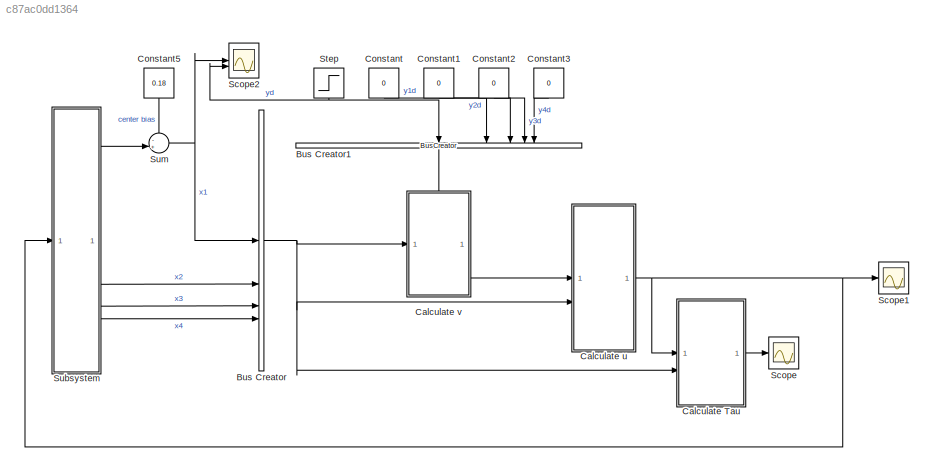
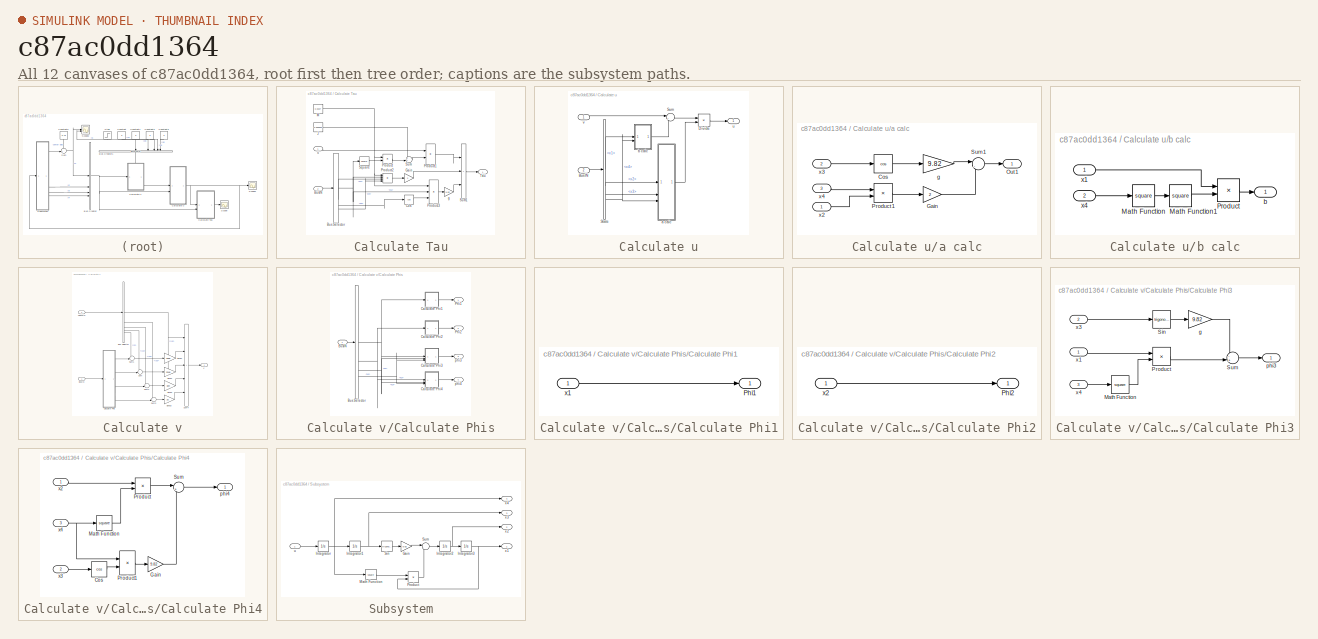
[diagram: thumbnail index - all 12 canvases of the model, root first then tree order]
MODEL slx_c87ac0dd1364
KIND model
CONFIG AbsTol = auto
CONFIG EnableMultiTasking = off
CONFIG FixedStep = auto
CONFIG MaxStep = auto
CONFIG MinStep = auto
CONFIG RelTol = 1e-3
CONFIG SampleTimeConstraint = Unconstrained
CONFIG SolverName = VariableStepAuto
CONFIG StartTime = 0.0
CONFIG StopTime = 50
BLOCK [BusCreator] Bus Creator
  DisplayOption = bar
  InheritFromInputs = on
  Inputs = 4
  NameLocation = right
BLOCK [BusCreator] Bus Creator1
  DisplayOption = bar
  InheritFromInputs = on
  Inputs = 5
  NameLocation = left
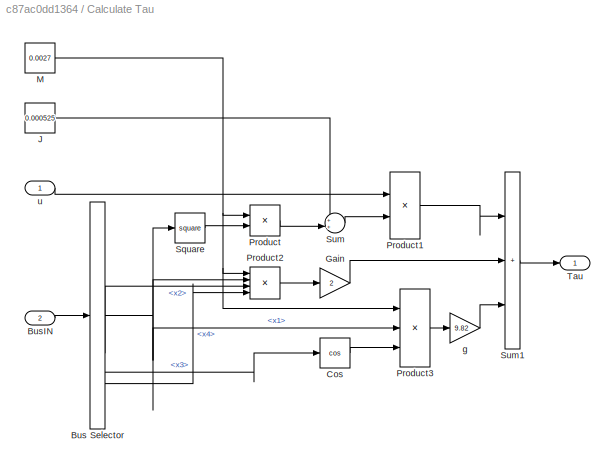
BLOCK [SubSystem] Calculate Tau
BLOCK [BusSelector] Calculate Tau/Bus Selector
  OutputSignals = x1,x2,x3,x4
BLOCK [Inport] Calculate Tau/BusIN
  Port = 2
BLOCK [Trigonometry] Calculate Tau/Cos
  Operator = cos
BLOCK [Gain] Calculate Tau/Gain
  Gain = 2
BLOCK [Constant] Calculate Tau/J
  Value = 0.000525
BLOCK [Constant] Calculate Tau/M
  Value = 0.0027
BLOCK [Product] Calculate Tau/Product
BLOCK [Product] Calculate Tau/Product1
BLOCK [Product] Calculate Tau/Product2
  Inputs = 4
BLOCK [Product] Calculate Tau/Product3
  Inputs = 3
BLOCK [Math] Calculate Tau/Square
  Operator = square
BLOCK [Sum] Calculate Tau/Sum
  Inputs = ++|
BLOCK [Sum] Calculate Tau/Sum1
  IconShape = rectangular
  Inputs = |+++
BLOCK [Outport] Calculate Tau/Tau
BLOCK [Gain] Calculate Tau/g
  Gain = 9.82
BLOCK [Inport] Calculate Tau/u
BLOCK [SubSystem] Calculate u
BLOCK [Inport] Calculate u/BusIN
  Port = 2
BLOCK [Product] Calculate u/Divide
  Inputs = */
BLOCK [BusSelector] Calculate u/State 
  OutputSignals = x1,x2,x3,x4
BLOCK [Sum] Calculate u/Sum
  Inputs = |+-
BLOCK [SubSystem] Calculate u/a calc
BLOCK [Trigonometry] Calculate u/a calc/Cos
  Operator = cos
BLOCK [Gain] Calculate u/a calc/Gain
  Gain = 2
BLOCK [Outport] Calculate u/a calc/Out1
BLOCK [Product] Calculate u/a calc/Product1
BLOCK [Sum] Calculate u/a calc/Sum1
  Inputs = |-+
BLOCK [Gain] Calculate u/a calc/g
  Gain = 9.82
BLOCK [Inport] Calculate u/a calc/x2
BLOCK [Inport] Calculate u/a calc/x3
  Port = 2
BLOCK [Inport] Calculate u/a calc/x4
  Port = 3
BLOCK [SubSystem] Calculate u/b calc
BLOCK [Math] Calculate u/b calc/Math Function
  Operator = square
BLOCK [Math] Calculate u/b calc/Math Function1
  Operator = square
BLOCK [Product] Calculate u/b calc/Product
BLOCK [Outport] Calculate u/b calc/b
BLOCK [Inport] Calculate u/b calc/x1
BLOCK [Inport] Calculate u/b calc/x4
  Port = 2
BLOCK [Outport] Calculate u/u
BLOCK [Inport] Calculate u/v
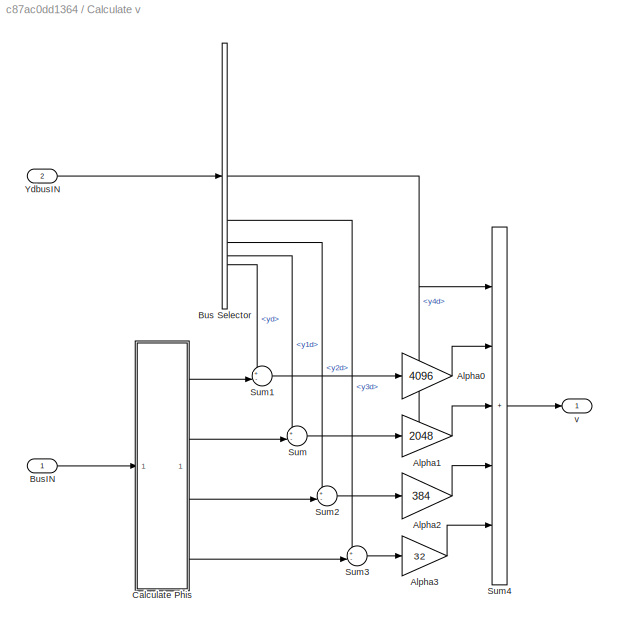
BLOCK [SubSystem] Calculate v
  PortSchema = {"entries":[{"content":{"sides":[{"content":{"connectorIds":["In1"]},"type":"ConnectorPlacement.EquallySpacedRectSide","uuid":"7c28e410-4806-4a94-8ccf-a14e347b0b8c"},{"content":{"connectorIds":["Out1"],"side":"RIGHT"},"type":"ConnectorPlacement.EquallySpacedRectSide","uuid":"f53d7206-bd2e-4f71-94df-5fcac3ff5314"},{"content":{"connectorIds":["In2"],"side":"TOP"},"type":"ConnectorPlacement.EquallySp...<+245ch>
BLOCK [Gain] Calculate v/Alpha0
  Gain = 4096
BLOCK [Gain] Calculate v/Alpha1
  Gain = 2048
BLOCK [Gain] Calculate v/Alpha2
  Gain = 384
BLOCK [Gain] Calculate v/Alpha3
  Gain = 32
BLOCK [BusSelector] Calculate v/Bus Selector
  OutputSignals = y4d,y3d,y2d,y1d,yd
BLOCK [Inport] Calculate v/BusIN
BLOCK [SubSystem] Calculate v/Calculate Phis
BLOCK [BusSelector] Calculate v/Calculate Phis/Bus Selector
  OutputSignals = x1,x2,x3,x4
BLOCK [Inport] Calculate v/Calculate Phis/BusIN
BLOCK [SubSystem] Calculate v/Calculate Phis/Calculate Phi1
BLOCK [Outport] Calculate v/Calculate Phis/Calculate Phi1/Phi1
BLOCK [Inport] Calculate v/Calculate Phis/Calculate Phi1/x1
BLOCK [SubSystem] Calculate v/Calculate Phis/Calculate Phi2
BLOCK [Outport] Calculate v/Calculate Phis/Calculate Phi2/Phi2
BLOCK [Inport] Calculate v/Calculate Phis/Calculate Phi2/x2
BLOCK [SubSystem] Calculate v/Calculate Phis/Calculate Phi3
BLOCK [Math] Calculate v/Calculate Phis/Calculate Phi3/Math Function
  Operator = square
BLOCK [Product] Calculate v/Calculate Phis/Calculate Phi3/Product
BLOCK [Trigonometry] Calculate v/Calculate Phis/Calculate Phi3/Sin
BLOCK [Sum] Calculate v/Calculate Phis/Calculate Phi3/Sum
  Inputs = -+|
BLOCK [Gain] Calculate v/Calculate Phis/Calculate Phi3/g
  Gain = 9.82
BLOCK [Outport] Calculate v/Calculate Phis/Calculate Phi3/phi3
BLOCK [Inport] Calculate v/Calculate Phis/Calculate Phi3/x1
BLOCK [Inport] Calculate v/Calculate Phis/Calculate Phi3/x3
  Port = 2
BLOCK [Inport] Calculate v/Calculate Phis/Calculate Phi3/x4
  Port = 3
BLOCK [SubSystem] Calculate v/Calculate Phis/Calculate Phi4
BLOCK [Trigonometry] Calculate v/Calculate Phis/Calculate Phi4/Cos
  Operator = cos
BLOCK [Gain] Calculate v/Calculate Phis/Calculate Phi4/Gain
  Gain = 9.82
BLOCK [Math] Calculate v/Calculate Phis/Calculate Phi4/Math Function
  Operator = square
BLOCK [Product] Calculate v/Calculate Phis/Calculate Phi4/Product
BLOCK [Product] Calculate v/Calculate Phis/Calculate Phi4/Product1
BLOCK [Sum] Calculate v/Calculate Phis/Calculate Phi4/Sum
  Inputs = |+-
BLOCK [Outport] Calculate v/Calculate Phis/Calculate Phi4/phi4
BLOCK [Inport] Calculate v/Calculate Phis/Calculate Phi4/x2
BLOCK [Inport] Calculate v/Calculate Phis/Calculate Phi4/x3
  Port = 2
BLOCK [Inport] Calculate v/Calculate Phis/Calculate Phi4/x4
  Port = 3
BLOCK [Outport] Calculate v/Calculate Phis/Phi1
BLOCK [Outport] Calculate v/Calculate Phis/Phi2
  Port = 2
BLOCK [Outport] Calculate v/Calculate Phis/phi3
  Port = 3
BLOCK [Outport] Calculate v/Calculate Phis/phi4
  Port = 4
BLOCK [Sum] Calculate v/Sum
  Inputs = +-|
BLOCK [Sum] Calculate v/Sum1
  Inputs = +-|
BLOCK [Sum] Calculate v/Sum2
  Inputs = +-|
BLOCK [Sum] Calculate v/Sum3
  Inputs = +-|
BLOCK [Sum] Calculate v/Sum4
  IconShape = rectangular
  Inputs = |+++++
BLOCK [Inport] Calculate v/YdbusIN
  Port = 2
BLOCK [Outport] Calculate v/v
BLOCK [Constant] Constant
  NameLocation = left
  Value = 0
BLOCK [Constant] Constant1
  NameLocation = left
  Value = 0
BLOCK [Constant] Constant2
  NameLocation = left
  Value = 0
BLOCK [Constant] Constant3
  NameLocation = left
  Value = 0
BLOCK [Constant] Constant5
  NameLocation = left
  Value = 0.18
BLOCK [Scope] Scope
  Floating = off
  NumInputPorts = 1
  ScopeSpecificationString = Simulink.scopes.TimeScopeBlockCfg('CurrentConfiguration', extmgr.ConfigurationSet(extmgr.Configuration('Core','General UI',true),extmgr.Configuration('Core','Source UI',true),extmgr.Configuration('Sources','WiredSimulink',true,'DataLoggingVariableName','ScopeData1'),extmgr.Configuration('Visuals','Time Domain',true),extmgr.Configuration('Tools','Plot Navigation',true),extmgr.Configuration('Tools',...<+40ch>
BLOCK [Scope] Scope1
  Floating = off
  NumInputPorts = 1
  ScopeSpecificationString = Simulink.scopes.TimeScopeBlockCfg('CurrentConfiguration', extmgr.ConfigurationSet(extmgr.Configuration('Core','General UI',true),extmgr.Configuration('Core','Source UI',true),extmgr.Configuration('Sources','WiredSimulink',true,'DataLoggingVariableName','ScopeData2'),extmgr.Configuration('Visuals','Time Domain',true),extmgr.Configuration('Tools','Plot Navigation',true),extmgr.Configuration('Tools',...<+40ch>
BLOCK [Scope] Scope2
  Floating = off
  NumInputPorts = 2
  ScopeSpecificationString = Simulink.scopes.TimeScopeBlockCfg('CurrentConfiguration', extmgr.ConfigurationSet(extmgr.Configuration('Core','General UI',true),extmgr.Configuration('Core','Source UI',true),extmgr.Configuration('Sources','WiredSimulink',true,'DataLoggingVariableName','ScopeData2'),extmgr.Configuration('Visuals','Time Domain',true,'SerializedDisplays',{struct('MinYLimReal','-0.215','MaxYLimReal','0.135','YLabelRe...<+1408ch>
BLOCK [Step] Step
  After = 0.1
  NameLocation = left
  SampleTime = 0
  Time = 10
BLOCK [SubSystem] Subsystem
BLOCK [Gain] Subsystem/Gain
  Gain = 9.82
BLOCK [Integrator] Subsystem/Integrator
BLOCK [Integrator] Subsystem/Integrator1
BLOCK [Integrator] Subsystem/Integrator2
BLOCK [Integrator] Subsystem/Integrator3
BLOCK [Math] Subsystem/Math Function
  Operator = square
BLOCK [Product] Subsystem/Product
BLOCK [Trigonometry] Subsystem/Sin
BLOCK [Sum] Subsystem/Sum
  Inputs = |-+
BLOCK [Inport] Subsystem/u
BLOCK [Outport] Subsystem/x1
BLOCK [Outport] Subsystem/x2
  Port = 2
BLOCK [Outport] Subsystem/x3
  Port = 3
BLOCK [Outport] Subsystem/x4
  Port = 4
BLOCK [Sum] Sum
  Inputs = -+|
LINE Bus Creator1:1 -> Calculate v:2
NET Bus Creator:1 -> Calculate Tau:2, Calculate u:2, Calculate v:1
NET Calculate Tau/Bus Selector:1 -> Calculate Tau/Product2:2, Calculate Tau/Product3:2, Calculate Tau/Square:1
LINE Calculate Tau/Bus Selector:2 -> Calculate Tau/Product2:3
LINE Calculate Tau/Bus Selector:3 -> Calculate Tau/Cos:1
LINE Calculate Tau/Bus Selector:4 -> Calculate Tau/Product2:4
LINE Calculate Tau/BusIN:1 -> Calculate Tau/Bus Selector:1
LINE Calculate Tau/Cos:1 -> Calculate Tau/Product3:3
LINE Calculate Tau/Gain:1 -> Calculate Tau/Sum1:2
LINE Calculate Tau/J:1 -> Calculate Tau/Sum:1
NET Calculate Tau/M:1 -> Calculate Tau/Product2:1, Calculate Tau/Product3:1, Calculate Tau/Product:1
LINE Calculate Tau/Product1:1 -> Calculate Tau/Sum1:1
LINE Calculate Tau/Product2:1 -> Calculate Tau/Gain:1
LINE Calculate Tau/Product3:1 -> Calculate Tau/g:1
LINE Calculate Tau/Product:1 -> Calculate Tau/Sum:2
LINE Calculate Tau/Square:1 -> Calculate Tau/Product:2
LINE Calculate Tau/Sum1:1 -> Calculate Tau/Tau:1
LINE Calculate Tau/Sum:1 -> Calculate Tau/Product1:2
LINE Calculate Tau/g:1 -> Calculate Tau/Sum1:3
LINE Calculate Tau/u:1 -> Calculate Tau/Product1:1
LINE Calculate Tau:1 -> Scope:1
LINE Calculate u/BusIN:1 -> Calculate u/State :1
LINE Calculate u/Divide:1 -> Calculate u/u:1
LINE Calculate u/State :1 -> Calculate u/b calc:1
LINE Calculate u/State :2 -> Calculate u/a calc:1
LINE Calculate u/State :3 -> Calculate u/a calc:2
NET Calculate u/State :4 -> Calculate u/a calc:3, Calculate u/b calc:2
LINE Calculate u/Sum:1 -> Calculate u/Divide:1
LINE Calculate u/a calc/Cos:1 -> Calculate u/a calc/g:1
LINE Calculate u/a calc/Gain:1 -> Calculate u/a calc/Sum1:2
LINE Calculate u/a calc/Product1:1 -> Calculate u/a calc/Gain:1
LINE Calculate u/a calc/Sum1:1 -> Calculate u/a calc/Out1:1
LINE Calculate u/a calc/g:1 -> Calculate u/a calc/Sum1:1
LINE Calculate u/a calc/x2:1 -> Calculate u/a calc/Product1:2
LINE Calculate u/a calc/x3:1 -> Calculate u/a calc/Cos:1
LINE Calculate u/a calc/x4:1 -> Calculate u/a calc/Product1:1
LINE Calculate u/a calc:1 -> Calculate u/Divide:2
LINE Calculate u/b calc/Math Function1:1 -> Calculate u/b calc/Product:2
LINE Calculate u/b calc/Math Function:1 -> Calculate u/b calc/Math Function1:1
LINE Calculate u/b calc/Product:1 -> Calculate u/b calc/b:1
LINE Calculate u/b calc/x1:1 -> Calculate u/b calc/Product:1
LINE Calculate u/b calc/x4:1 -> Calculate u/b calc/Math Function:1
LINE Calculate u/b calc:1 -> Calculate u/Sum:2
LINE Calculate u/v:1 -> Calculate u/Sum:1
NET Calculate u:1 -> Calculate Tau:1, Scope1:1, Subsystem:1
LINE Calculate v/Alpha0:1 -> Calculate v/Sum4:2
LINE Calculate v/Alpha1:1 -> Calculate v/Sum4:3
LINE Calculate v/Alpha2:1 -> Calculate v/Sum4:4
LINE Calculate v/Alpha3:1 -> Calculate v/Sum4:5
LINE Calculate v/Bus Selector:1 -> Calculate v/Sum4:1
LINE Calculate v/Bus Selector:2 -> Calculate v/Sum3:1
LINE Calculate v/Bus Selector:3 -> Calculate v/Sum2:1
LINE Calculate v/Bus Selector:4 -> Calculate v/Sum:1
LINE Calculate v/Bus Selector:5 -> Calculate v/Sum1:1
LINE Calculate v/BusIN:1 -> Calculate v/Calculate Phis:1
NET Calculate v/Calculate Phis/Bus Selector:1 -> Calculate v/Calculate Phis/Calculate Phi1:1, Calculate v/Calculate Phis/Calculate Phi3:1
NET Calculate v/Calculate Phis/Bus Selector:2 -> Calculate v/Calculate Phis/Calculate Phi2:1, Calculate v/Calculate Phis/Calculate Phi4:1
NET Calculate v/Calculate Phis/Bus Selector:3 -> Calculate v/Calculate Phis/Calculate Phi3:2, Calculate v/Calculate Phis/Calculate Phi4:2
NET Calculate v/Calculate Phis/Bus Selector:4 -> Calculate v/Calculate Phis/Calculate Phi3:3, Calculate v/Calculate Phis/Calculate Phi4:3
LINE Calculate v/Calculate Phis/BusIN:1 -> Calculate v/Calculate Phis/Bus Selector:1
LINE Calculate v/Calculate Phis/Calculate Phi1/x1:1 -> Calculate v/Calculate Phis/Calculate Phi1/Phi1:1
LINE Calculate v/Calculate Phis/Calculate Phi1:1 -> Calculate v/Calculate Phis/Phi1:1
LINE Calculate v/Calculate Phis/Calculate Phi2/x2:1 -> Calculate v/Calculate Phis/Calculate Phi2/Phi2:1
LINE Calculate v/Calculate Phis/Calculate Phi2:1 -> Calculate v/Calculate Phis/Phi2:1
LINE Calculate v/Calculate Phis/Calculate Phi3/Math Function:1 -> Calculate v/Calculate Phis/Calculate Phi3/Product:2
LINE Calculate v/Calculate Phis/Calculate Phi3/Product:1 -> Calculate v/Calculate Phis/Calculate Phi3/Sum:2
LINE Calculate v/Calculate Phis/Calculate Phi3/Sin:1 -> Calculate v/Calculate Phis/Calculate Phi3/g:1
LINE Calculate v/Calculate Phis/Calculate Phi3/Sum:1 -> Calculate v/Calculate Phis/Calculate Phi3/phi3:1
LINE Calculate v/Calculate Phis/Calculate Phi3/g:1 -> Calculate v/Calculate Phis/Calculate Phi3/Sum:1
LINE Calculate v/Calculate Phis/Calculate Phi3/x1:1 -> Calculate v/Calculate Phis/Calculate Phi3/Product:1
LINE Calculate v/Calculate Phis/Calculate Phi3/x3:1 -> Calculate v/Calculate Phis/Calculate Phi3/Sin:1
LINE Calculate v/Calculate Phis/Calculate Phi3/x4:1 -> Calculate v/Calculate Phis/Calculate Phi3/Math Function:1
LINE Calculate v/Calculate Phis/Calculate Phi3:1 -> Calculate v/Calculate Phis/phi3:1
LINE Calculate v/Calculate Phis/Calculate Phi4/Cos:1 -> Calculate v/Calculate Phis/Calculate Phi4/Product1:2
LINE Calculate v/Calculate Phis/Calculate Phi4/Gain:1 -> Calculate v/Calculate Phis/Calculate Phi4/Sum:2
LINE Calculate v/Calculate Phis/Calculate Phi4/Math Function:1 -> Calculate v/Calculate Phis/Calculate Phi4/Product:2
LINE Calculate v/Calculate Phis/Calculate Phi4/Product1:1 -> Calculate v/Calculate Phis/Calculate Phi4/Gain:1
LINE Calculate v/Calculate Phis/Calculate Phi4/Product:1 -> Calculate v/Calculate Phis/Calculate Phi4/Sum:1
LINE Calculate v/Calculate Phis/Calculate Phi4/Sum:1 -> Calculate v/Calculate Phis/Calculate Phi4/phi4:1
LINE Calculate v/Calculate Phis/Calculate Phi4/x2:1 -> Calculate v/Calculate Phis/Calculate Phi4/Product:1
LINE Calculate v/Calculate Phis/Calculate Phi4/x3:1 -> Calculate v/Calculate Phis/Calculate Phi4/Cos:1
NET Calculate v/Calculate Phis/Calculate Phi4/x4:1 -> Calculate v/Calculate Phis/Calculate Phi4/Math Function:1, Calculate v/Calculate Phis/Calculate Phi4/Product1:1
LINE Calculate v/Calculate Phis/Calculate Phi4:1 -> Calculate v/Calculate Phis/phi4:1
LINE Calculate v/Calculate Phis:1 -> Calculate v/Sum1:2
LINE Calculate v/Calculate Phis:2 -> Calculate v/Sum:2
LINE Calculate v/Calculate Phis:3 -> Calculate v/Sum2:2
LINE Calculate v/Calculate Phis:4 -> Calculate v/Sum3:2
LINE Calculate v/Sum1:1 -> Calculate v/Alpha0:1
LINE Calculate v/Sum2:1 -> Calculate v/Alpha2:1
LINE Calculate v/Sum3:1 -> Calculate v/Alpha3:1
LINE Calculate v/Sum4:1 -> Calculate v/v:1
LINE Calculate v/Sum:1 -> Calculate v/Alpha1:1
LINE Calculate v/YdbusIN:1 -> Calculate v/Bus Selector:1
LINE Calculate v:1 -> Calculate u:1
LINE Constant1:1 -> Bus Creator1:3
LINE Constant2:1 -> Bus Creator1:4
LINE Constant3:1 -> Bus Creator1:5
LINE Constant5:1 -> Sum:1
LINE Constant:1 -> Bus Creator1:2
NET Step:1 -> Bus Creator1:1, Scope2:2
LINE Subsystem/Gain:1 -> Subsystem/Sum:1
NET Subsystem/Integrator1:1 -> Subsystem/Sin:1, Subsystem/x3:1
NET Subsystem/Integrator2:1 -> Subsystem/Integrator3:1, Subsystem/x2:1
NET Subsystem/Integrator3:1 -> Subsystem/Product:2, Subsystem/x1:1
NET Subsystem/Integrator:1 -> Subsystem/Integrator1:1, Subsystem/Math Function:1, Subsystem/x4:1
LINE Subsystem/Math Function:1 -> Subsystem/Product:1
LINE Subsystem/Product:1 -> Subsystem/Sum:2
LINE Subsystem/Sin:1 -> Subsystem/Gain:1
LINE Subsystem/Sum:1 -> Subsystem/Integrator2:1
LINE Subsystem/u:1 -> Subsystem/Integrator:1
LINE Subsystem:1 -> Sum:2
LINE Subsystem:2 -> Bus Creator:2
LINE Subsystem:3 -> Bus Creator:3
LINE Subsystem:4 -> Bus Creator:4
NET Sum:1 -> Bus Creator:1, Scope2:1
note: NET lines group one-source signal fan-out (src -> all destinations, sorted); 1:1 wires keep LINE
